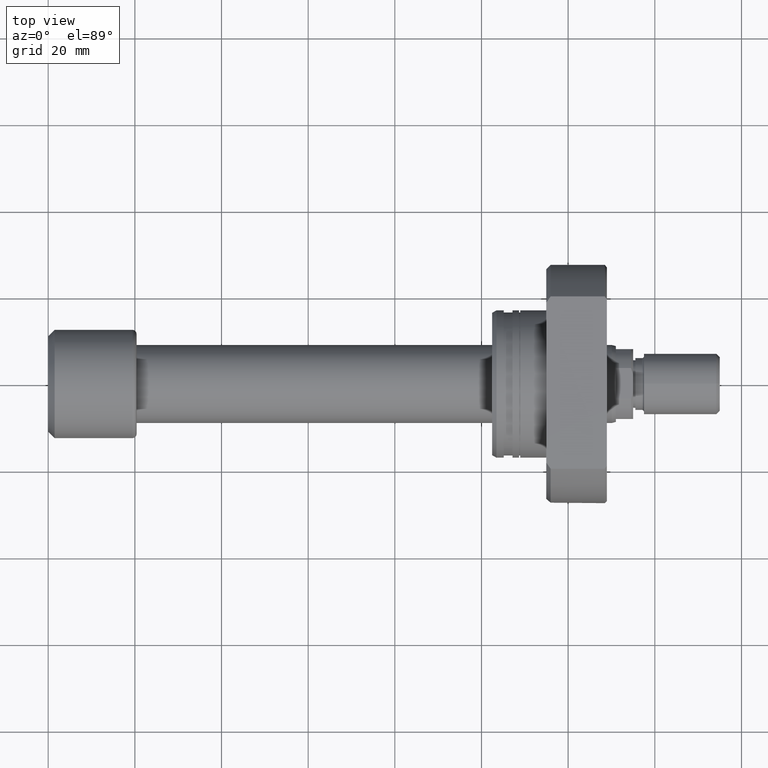
[diagram: clean part render]
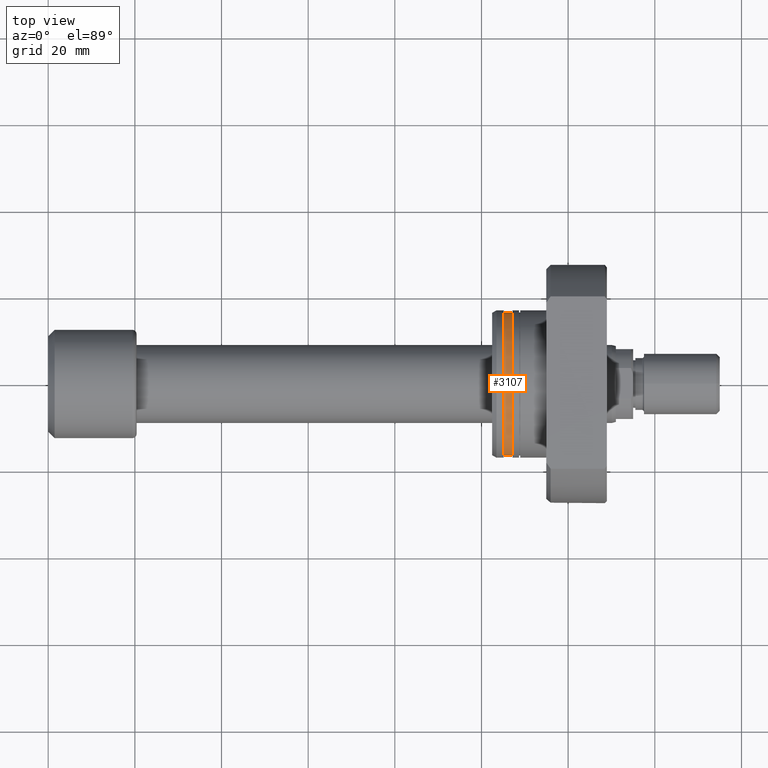
[diagram: same view with one face highlighted and labeled with its STEP entity id]
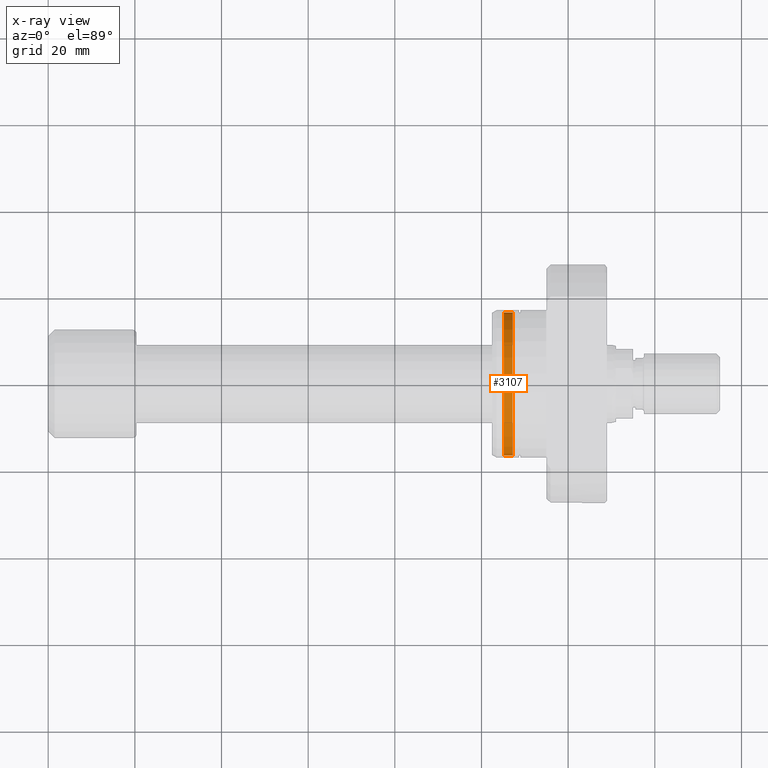
[diagram: x-ray of the same camera — body ghosted, the highlighted face saturated]
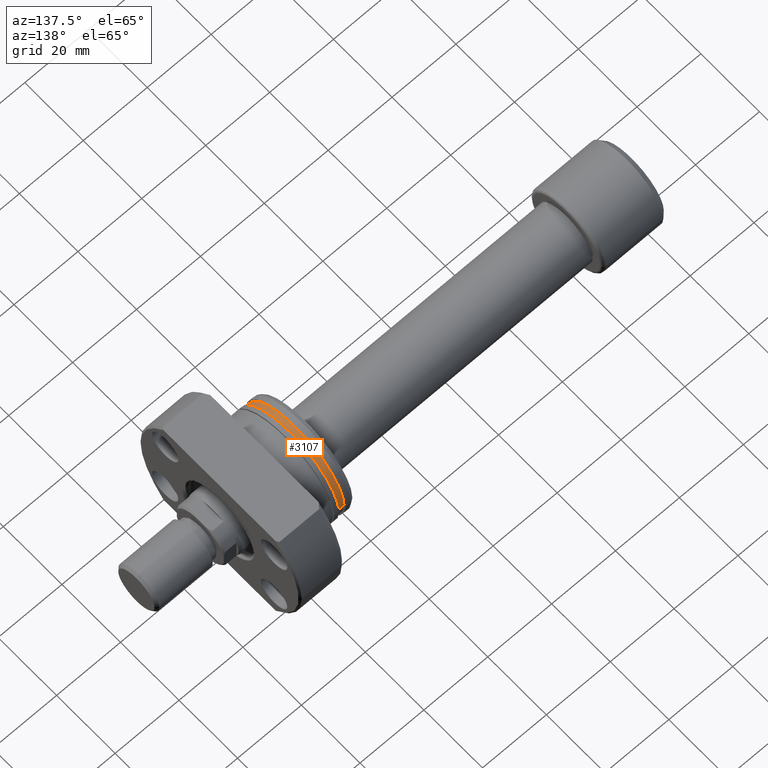
[diagram: same view with one face highlighted and labeled with its STEP entity id]
A machine part, top view. The second image highlights one B-rep face of the part: STEP entity #3107.
The next image is the same camera in x-ray: the body ghosted, the highlighted face saturated — about 0% of this face is hidden behind the body in this view.
A second angle (auxiliary view) of the same face is appended — the face is thin or edge-on in the first view.
In plain terms, the highlighted cylindrical surface (partial cylindrical patch) has radius 16.5 mm, axis along (1, 0, 0).
Its self-contained STEP definition (entity closure, byte-faithful):
#130 = CYLINDRICAL_SURFACE ( 'NONE', #1333, 16.49999999999999289 ) ;
#246 = EDGE_CURVE ( 'NONE', #2557, #2261, #3145, .T. ) ;
#328 = CIRCLE ( 'NONE', #2833, 16.49999999999999645 ) ;
#492 = ORIENTED_EDGE ( 'NONE', *, *, #1562, .T. ) ;
#597 = CARTESIAN_POINT ( 'NONE',  ( 2.699999999999782574, -16.49999999999999289, 2.020667218593132311E-15 ) ) ;
#881 = DIRECTION ( 'NONE',  ( 1.000000000000000000, 9.242617352055502386E-18, -0.000000000000000000 ) ) ;
#1001 = ORIENTED_EDGE ( 'NONE', *, *, #2071, .F. ) ;
#1003 = AXIS2_PLACEMENT_3D ( 'NONE', #1952, #2564, #3096 ) ;
#1072 = EDGE_LOOP ( 'NONE', ( #492, #2399, #3408, #1001 ) ) ;
#1173 = CARTESIAN_POINT ( 'NONE',  ( 4.699999999998548894, 16.49999999999999645, 0.000000000000000000 ) ) ;
#1177 = CIRCLE ( 'NONE', #1003, 16.49999999999999289 ) ;
#1179 = DIRECTION ( 'NONE',  ( 1.000000000000000000, 9.242617352055502386E-18, -0.000000000000000000 ) ) ;
#1246 = DIRECTION ( 'NONE',  ( 1.000000000000000000, 9.242617352055502386E-18, -0.000000000000000000 ) ) ;
#1279 = VECTOR ( 'NONE', #2811, 1000.000000000000000 ) ;
#1333 = AXIS2_PLACEMENT_3D ( 'NONE', #3473, #1246, #1774 ) ;
#1562 = EDGE_CURVE ( 'NONE', #2181, #2557, #1177, .T. ) ;
#1563 = FACE_OUTER_BOUND ( 'NONE', #1072, .T. ) ;
#1672 = CARTESIAN_POINT ( 'NONE',  ( 26.50000000000000711, 16.49999999999999289, 0.000000000000000000 ) ) ;
#1732 = EDGE_CURVE ( 'NONE', #2530, #2261, #328, .T. ) ;
#1761 = CARTESIAN_POINT ( 'NONE',  ( 26.50000000000000711, -16.49999999999999289, 2.020667218593132311E-15 ) ) ;
#1774 = DIRECTION ( 'NONE',  ( 0.000000000000000000, 1.000000000000000000, 0.000000000000000000 ) ) ;
#1952 = CARTESIAN_POINT ( 'NONE',  ( 2.699999999999782574, 2.495506685054785763E-17, 0.000000000000000000 ) ) ;
#1964 = LINE ( 'NONE', #1672, #1279 ) ;
#2071 = EDGE_CURVE ( 'NONE', #2181, #2530, #1964, .T. ) ;
#2180 = VECTOR ( 'NONE', #881, 1000.000000000000000 ) ;
#2181 = VERTEX_POINT ( 'NONE', #3177 ) ;
#2261 = VERTEX_POINT ( 'NONE', #2449 ) ;
#2399 = ORIENTED_EDGE ( 'NONE', *, *, #246, .T. ) ;
#2449 = CARTESIAN_POINT ( 'NONE',  ( 4.699999999998548894, -16.49999999999999645, 2.020667218593132706E-15 ) ) ;
#2530 = VERTEX_POINT ( 'NONE', #1173 ) ;
#2557 = VERTEX_POINT ( 'NONE', #597 ) ;
#2564 = DIRECTION ( 'NONE',  ( 1.000000000000000000, 9.242617352055502386E-18, -0.000000000000000000 ) ) ;
#2811 = DIRECTION ( 'NONE',  ( 1.000000000000000000, 9.242617352055502386E-18, -0.000000000000000000 ) ) ;
#2833 = AXIS2_PLACEMENT_3D ( 'NONE', #2882, #1179, #3463 ) ;
#2882 = CARTESIAN_POINT ( 'NONE',  ( 4.699999999998548894, 4.344030155464744241E-17, 0.000000000000000000 ) ) ;
#3096 = DIRECTION ( 'NONE',  ( 0.000000000000000000, 1.000000000000000000, 0.000000000000000000 ) ) ;
#3107 = ADVANCED_FACE ( 'NONE', ( #1563 ), #130, .T. ) ;
#3145 = LINE ( 'NONE', #1761, #2180 ) ;
#3177 = CARTESIAN_POINT ( 'NONE',  ( 2.699999999999782574, 16.49999999999999289, 0.000000000000000000 ) ) ;
#3408 = ORIENTED_EDGE ( 'NONE', *, *, #1732, .F. ) ;
#3463 = DIRECTION ( 'NONE',  ( 0.000000000000000000, 1.000000000000000000, 0.000000000000000000 ) ) ;
#3473 = CARTESIAN_POINT ( 'NONE',  ( 26.50000000000000711, 2.449293598294708880E-16, 0.000000000000000000 ) ) ;